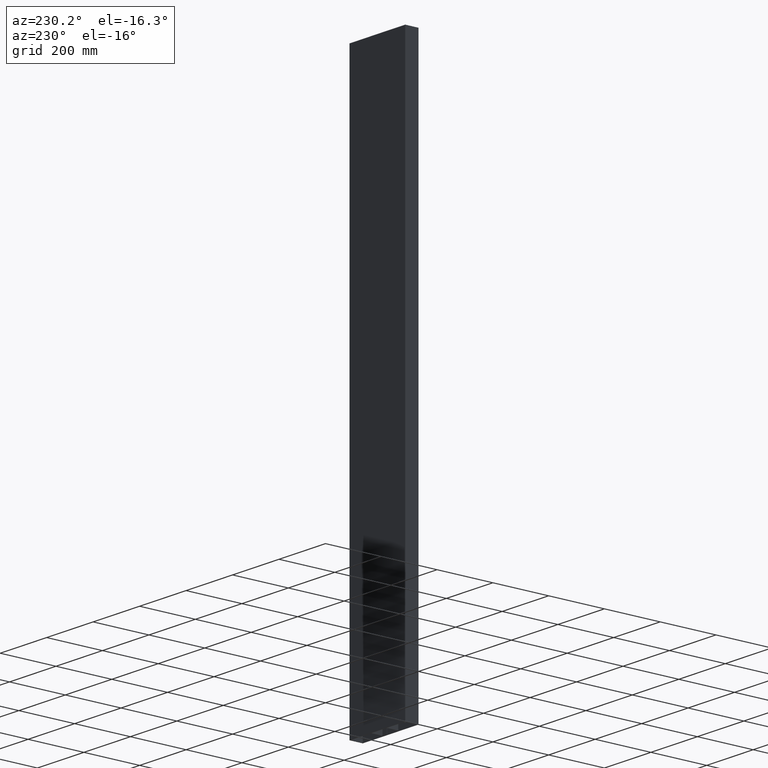
[diagram: clean part render]
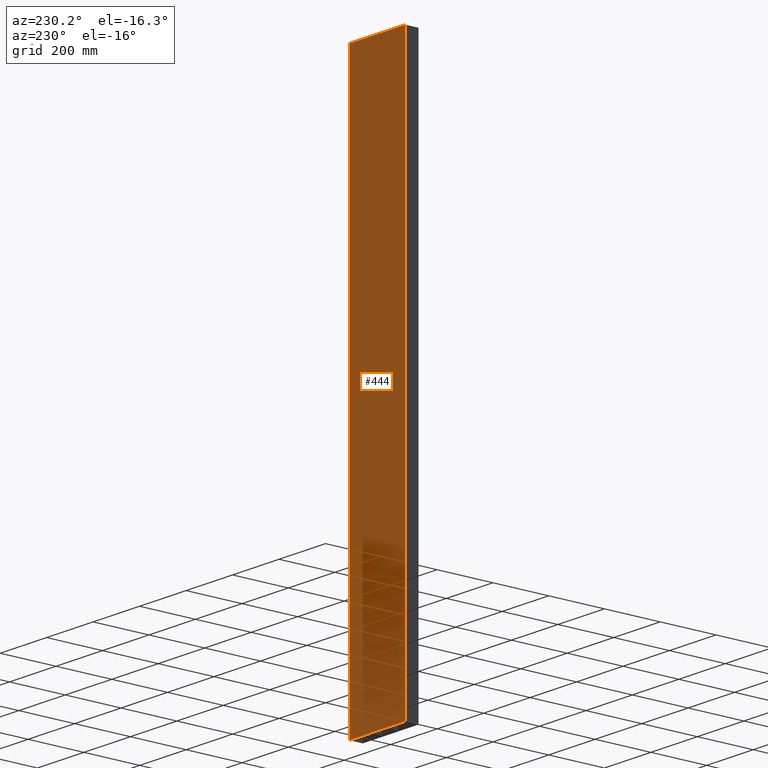
[diagram: same view with one face highlighted and labeled with its STEP entity id]
A machine part, auxiliary view. The second image highlights one B-rep face of the part: STEP entity #444.
In plain terms, the highlighted planar face has unit normal (0, 1, 0).
Its self-contained STEP definition (entity closure, byte-faithful):
#292=DIRECTION('',(-1.E0,0.E0,0.E0));
#293=VECTOR('',#292,2.4E2);
#294=CARTESIAN_POINT('',(1.2E2,4.77528E1,0.E0));
#295=LINE('',#294,#293);
#300=DIRECTION('',(0.E0,0.E0,-1.E0));
#301=VECTOR('',#300,2.E3);
#302=CARTESIAN_POINT('',(1.2E2,4.77528E1,0.E0));
#303=LINE('',#302,#301);
#304=DIRECTION('',(0.E0,0.E0,-1.E0));
#305=VECTOR('',#304,2.E3);
#306=CARTESIAN_POINT('',(-1.2E2,4.77528E1,0.E0));
#307=LINE('',#306,#305);
#332=DIRECTION('',(-1.E0,0.E0,0.E0));
#333=VECTOR('',#332,2.4E2);
#334=CARTESIAN_POINT('',(1.2E2,4.77528E1,-2.E3));
#335=LINE('',#334,#333);
#361=CARTESIAN_POINT('',(1.2E2,4.77528E1,0.E0));
#363=VERTEX_POINT('',#361);
#364=CARTESIAN_POINT('',(-1.2E2,4.77528E1,0.E0));
#365=VERTEX_POINT('',#364);
#373=CARTESIAN_POINT('',(1.2E2,4.77528E1,-2.E3));
#375=VERTEX_POINT('',#373);
#376=CARTESIAN_POINT('',(-1.2E2,4.77528E1,-2.E3));
#377=VERTEX_POINT('',#376);
#431=CARTESIAN_POINT('',(1.2E2,4.77528E1,0.E0));
#432=DIRECTION('',(0.E0,1.E0,0.E0));
#433=DIRECTION('',(-1.E0,0.E0,0.E0));
#434=AXIS2_PLACEMENT_3D('',#431,#432,#433);
#435=PLANE('',#434);
#436=ORIENTED_EDGE('',*,*,#411,.T.);
#438=ORIENTED_EDGE('',*,*,#437,.T.);
#440=ORIENTED_EDGE('',*,*,#439,.F.);
#441=ORIENTED_EDGE('',*,*,#422,.F.);
#442=EDGE_LOOP('',(#436,#438,#440,#441));
#443=FACE_OUTER_BOUND('',#442,.F.);
#411=EDGE_CURVE('',#363,#365,#295,.T.);
#422=EDGE_CURVE('',#363,#375,#303,.T.);
#437=EDGE_CURVE('',#365,#377,#307,.T.);
#439=EDGE_CURVE('',#375,#377,#335,.T.);
#444=ADVANCED_FACE('',(#443),#435,.T.);